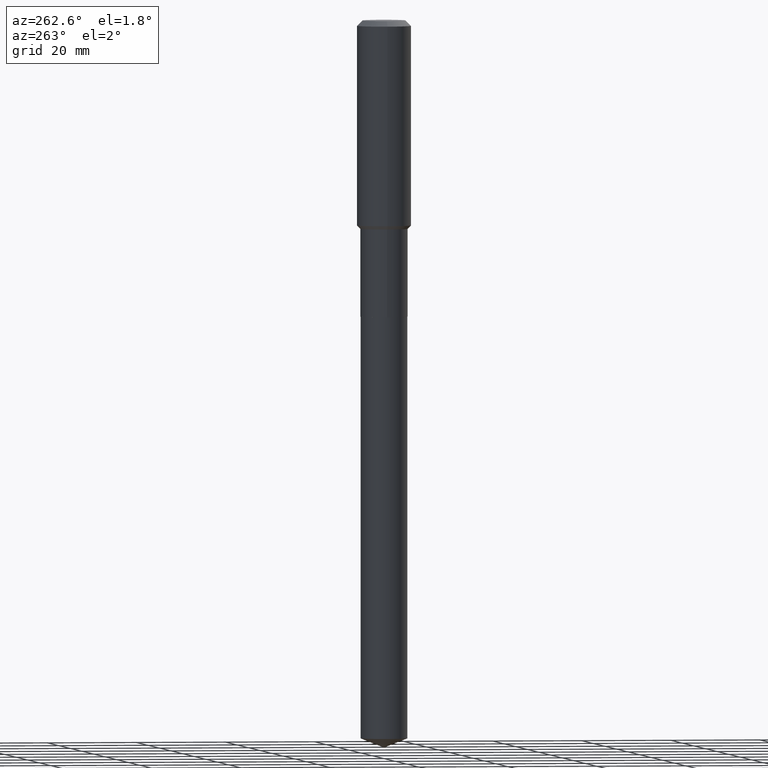
[diagram: clean part render]
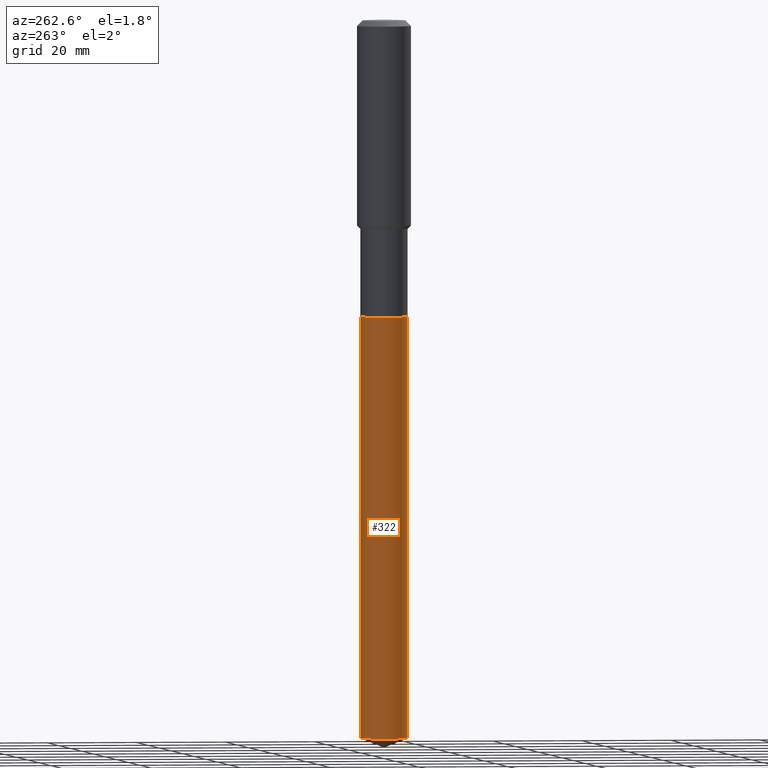
[diagram: same view with one face highlighted and labeled with its STEP entity id]
A machine part, auxiliary view. The second image highlights one B-rep face of the part: STEP entity #322.
In plain terms, the highlighted cylindrical surface (edge-blend (fillet) strip) has radius 5.2502 mm, axis along (-0, 0, 1).
Its self-contained STEP definition (entity closure, byte-faithful):
#23 = LINE ( 'NONE', #150, #78 ) ;
#30 = CIRCLE ( 'NONE', #64, 0.2067000000000000226 ) ;
#52 = LINE ( 'NONE', #194, #212 ) ;
#56 = DIRECTION ( 'NONE',  ( -6.982962677686265133E-15, -1.000000000000000000, 2.643297526525653668E-15 ) ) ;
#64 = AXIS2_PLACEMENT_3D ( 'NONE', #123, #192, #56 ) ;
#78 = VECTOR ( 'NONE', #146, 39.37007874015748143 ) ;
#121 = VERTEX_POINT ( 'NONE', #435 ) ;
#123 = CARTESIAN_POINT ( 'NONE',  ( 6.354306145991460877E-29, -9.072265110850034200E-15, -2.598400000000000709 ) ) ;
#127 = ORIENTED_EDGE ( 'NONE', *, *, #305, .F. ) ;
#146 = DIRECTION ( 'NONE',  ( -2.445449169258695004E-29, 3.491509460039474509E-15, 1.000000000000000000 ) ) ;
#150 = CARTESIAN_POINT ( 'NONE',  ( 1.468691834816190551E-15, 0.2066999999999909188, -2.598400000000001597 ) ) ;
#153 = FACE_OUTER_BOUND ( 'NONE', #344, .T. ) ;
#154 = VERTEX_POINT ( 'NONE', #446 ) ;
#161 = VERTEX_POINT ( 'NONE', #478 ) ;
#171 = CIRCLE ( 'NONE', #204, 0.2067000000000000226 ) ;
#178 = ORIENTED_EDGE ( 'NONE', *, *, #257, .T. ) ;
#184 = CARTESIAN_POINT ( 'NONE',  ( 6.354306145991460877E-29, -9.072265110850034200E-15, -2.598400000000000709 ) ) ;
#192 = DIRECTION ( 'NONE',  ( -2.445449169258695004E-29, 3.491509460039474509E-15, 1.000000000000000000 ) ) ;
#194 = CARTESIAN_POINT ( 'NONE',  ( -1.443378385477687712E-15, -0.2067000000000090987, -2.598400000000000265 ) ) ;
#204 = AXIS2_PLACEMENT_3D ( 'NONE', #440, #219, #331 ) ;
#212 = VECTOR ( 'NONE', #428, 39.37007874015748143 ) ;
#219 = DIRECTION ( 'NONE',  ( -2.445449169258695004E-29, 3.491509460039474509E-15, 1.000000000000000000 ) ) ;
#222 = EDGE_CURVE ( 'NONE', #121, #161, #52, .T. ) ;
#233 = CARTESIAN_POINT ( 'NONE',  ( 1.468691834816282059E-15, 0.2066999999999909743, -2.598400000000001597 ) ) ;
#250 = ORIENTED_EDGE ( 'NONE', *, *, #222, .T. ) ;
#257 = EDGE_CURVE ( 'NONE', #154, #121, #171, .T. ) ;
#275 = AXIS2_PLACEMENT_3D ( 'NONE', #184, #291, #329 ) ;
#290 = ORIENTED_EDGE ( 'NONE', *, *, #487, .F. ) ;
#291 = DIRECTION ( 'NONE',  ( -2.445449169258695004E-29, 3.491509460039474509E-15, 1.000000000000000000 ) ) ;
#305 = EDGE_CURVE ( 'NONE', #154, #378, #23, .T. ) ;
#322 = ADVANCED_FACE ( 'NONE', ( #153 ), #366, .T. ) ;
#329 = DIRECTION ( 'NONE',  ( -6.982962677686265133E-15, -1.000000000000000000, 2.643297526525653668E-15 ) ) ;
#331 = DIRECTION ( 'NONE',  ( -6.982962677686265133E-15, -1.000000000000000000, 5.286595053051307336E-15 ) ) ;
#344 = EDGE_LOOP ( 'NONE', ( #127, #178, #250, #290 ) ) ;
#366 = CYLINDRICAL_SURFACE ( 'NONE', #275, 0.2067000000000000226 ) ;
#378 = VERTEX_POINT ( 'NONE', #233 ) ;
#428 = DIRECTION ( 'NONE',  ( -2.445449169258695004E-29, 3.491509460039474509E-15, 1.000000000000000000 ) ) ;
#435 = CARTESIAN_POINT ( 'NONE',  ( -1.443378385477597190E-15, -0.2067000000000219773, -6.296478704690391837 ) ) ;
#440 = CARTESIAN_POINT ( 'NONE',  ( 1.539776964222985142E-28, -2.198414189224705960E-14, -6.296478704690392725 ) ) ;
#446 = CARTESIAN_POINT ( 'NONE',  ( 1.468691834816281073E-15, 0.2066999999999780124, -6.296478704690394501 ) ) ;
#478 = CARTESIAN_POINT ( 'NONE',  ( -1.443378385477687712E-15, -0.2067000000000090987, -2.598400000000000265 ) ) ;
#487 = EDGE_CURVE ( 'NONE', #378, #161, #30, .T. ) ;